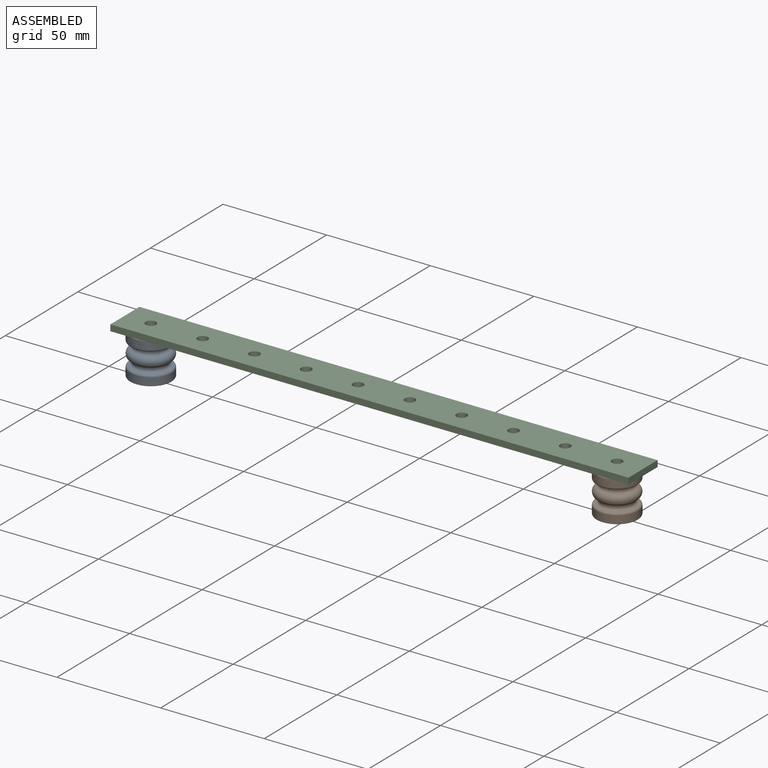
[diagram: assembled view]
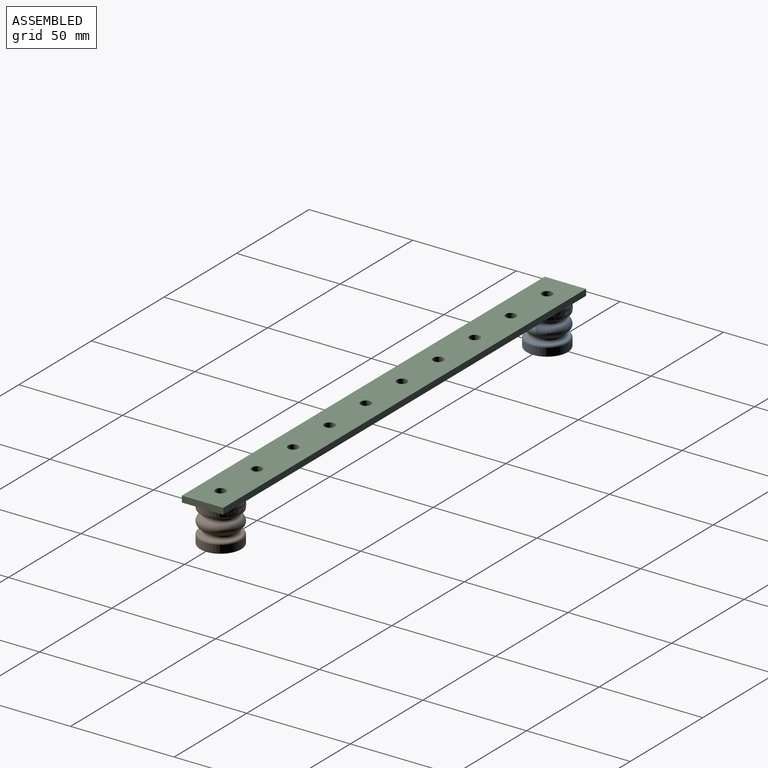
[diagram: assembled view, second angle]
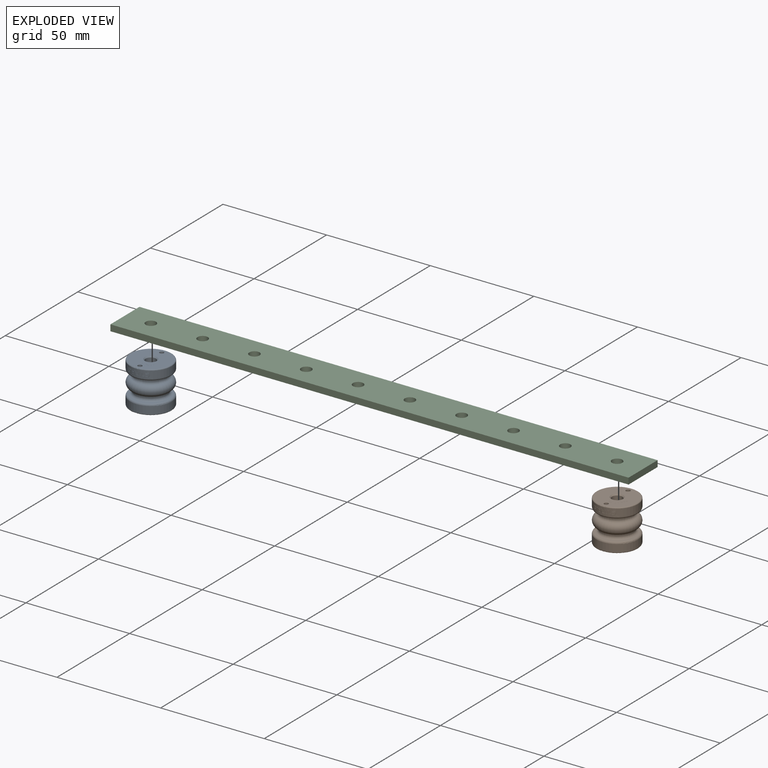
[diagram: exploded view]
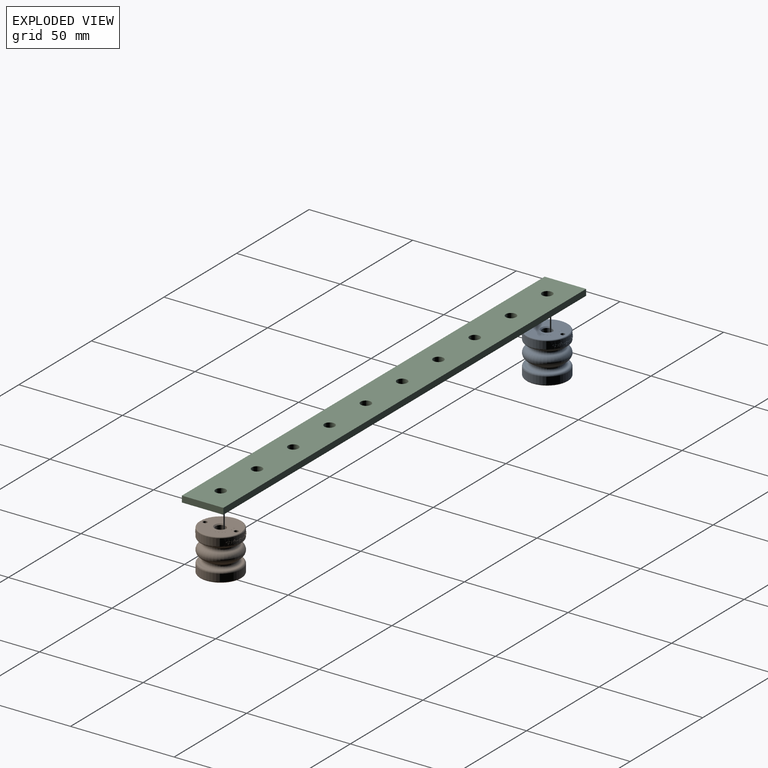
[diagram: exploded view, second angle]
ASSEMBLY  parts=3 mates=2
PART A: 321 faces, bbox 21.7x20x21.7 mm
  f0: cone r=2.5mm half-angle=45deg, axis (0,1,0), area 12.2mm2, adj f4,f313
  f1: cone r=2.5mm half-angle=45deg, axis (0,-1,0), area 12.2mm2, adj f2,f320
  f2: cylinder r=2.5mm len=5mm, axis (0,-1,0), area 78.5mm2, adj f1,f3
  f3: cone r=2.5mm half-angle=59deg, axis (0,-1,0), area 22.9mm2, adj f2
  f4: cylinder r=2.5mm len=5mm, axis (0,1,0), area 78.5mm2, adj f0,f5
  f5: cone r=2.5mm half-angle=59deg, axis (0,1,0), area 22.9mm2, adj f4
  f6: torus R=6.35mm, axis (0,-1,0), area 6.2mm2, adj f25,f30
  f7: torus R=8.75mm, axis (0,1,0), area 75.3mm2, adj f13,f23
  f8: torus R=8.75mm, axis (0,1,0), area 75.3mm2, adj f13,f22
  f9: torus R=8.75mm, axis (0,-1,0), area 98.1mm2, adj f23,f28
  f10: torus R=8.75mm, axis (0,1,0), area 98.1mm2, adj f22,f29
  f11: torus R=9.5mm, axis (0,1,0), area 48.5mm2, adj f24,f27
  f12: torus R=9.5mm, axis (0,-1,0), area 48.5mm2, adj f21,f30
  f13: torus R=7.5mm, axis (0,1,0), area 364.1mm2, adj f7,f8
  f14: torus R=9mm, axis (0,-1,0), area 95.1mm2, adj f24,f28
  f15: torus R=9mm, axis (0,1,0), area 95.1mm2, adj f21,f29
  f16: torus R=1.1mm, axis (0,1,0), area 1mm2, adj f19,f27
  f17: torus R=6.29mm, axis (0,1,0), area 1.8mm2, adj f26,f27
  f18: torus R=1.1mm, axis (0,1,0), area 1mm2, adj f20,f27
  f19: cylinder r=1mm len=2.9mm, axis (0,1,0), area 18.2mm2, adj f16,f306
  f20: cylinder r=1mm len=2.9mm, axis (0,1,0), area 18.2mm2, adj f18,f305
  f21: cylinder r=10mm len=20mm, axis (0,1,0), area 219.9mm2, adj f12,f15
  f22: cylinder r=7.5mm len=15mm, axis (0,1,0), area 10.1mm2, adj f8,f10
  f23: cylinder r=7.5mm len=15mm, axis (0,1,0), area 10.1mm2, adj f7,f9
  f24: cylinder r=10mm len=20mm, axis (0,1,0), area 206.7mm2, adj f11,f14,f31,f32,f33,f34,f35,f36
  f25: plane 12.5x12.5mm, normal (0,-1,0), area 29.2mm2, adj f6,f314,f315,f316,f317,f318,f319
  f26: plane 12.5x12.5mm, normal (0,1,0), area 29.2mm2, adj f17,f307,f308,f309,f310,f311,f312
  f27: plane 19x19mm, normal (0,1,0), area 151.5mm2, adj f11,f16,f17,f18
  f28: plane 18x18mm, normal (0,-1,0), area 13.9mm2, adj f9,f14
  f29: plane 18x18mm, normal (0,1,0), area 13.9mm2, adj f10,f15
  f30: plane 19x19mm, normal (0,-1,0), area 156.9mm2, adj f6,f12
  f31: cylinder r=0.18mm len=0.21mm, axis (0,0,-1), area 0mm2, adj f24,f32,f54,f55
  f32: plane 0.72x0.44mm, normal (0,-1,0), area 0.1mm2, adj f24,f31,f33,f55
  f33: cylinder r=0.18mm len=0.18mm, axis (0,0,-1), area 0mm2, adj f24,f32,f34,f55
  f34: plane 0.66x0.11mm, normal (1,0,0), area 0.1mm2, adj f24,f33,f35,f55
  f35: plane 0.87x0.5mm, normal (0.34,0.94,0), area 0.1mm2, adj f24,f34,f36,f55
  f36: plane 0.36x0.11mm, normal (1,0,0), area 0mm2, adj f24,f35,f37,f55
  f37: plane 0.13x0.03mm, normal (0.71,-0.71,0), area 0mm2, adj f24,f36,f38,f55
  f38: plane 0.58x0.38mm, normal (0,-1,0), area 0.1mm2, adj f24,f37,f39,f55
  f39: plane 0.12x0.04mm, normal (-0.71,-0.71,0), area 0mm2, adj f24,f38,f40,f55
  f40: plane 0.26x0.11mm, normal (-1,0,0), area 0mm2, adj f24,f39,f41,f55
  f41: plane 0.22x0.2mm, normal (-0.34,-0.94,0), area 0mm2, adj f24,f40,f42,f55
  f42: plane 0.44x0.11mm, normal (1,0,0), area 0mm2, adj f24,f41,f43,f55
  f43: cylinder r=0.18mm len=0.18mm, axis (0,0,-1), area 0mm2, adj f24,f42,f44,f55
  f44: plane 0.72x0.44mm, normal (0,1,0), area 0.1mm2, adj f24,f43,f45,f55
  f45: cylinder r=0.18mm len=0.21mm, axis (0,0,-1), area 0mm2, adj f24,f44,f46,f55
  f46: plane 0.66x0.11mm, normal (-1,0,0), area 0.1mm2, adj f24,f45,f47,f55
  f47: plane 0.87x0.53mm, normal (-0.34,-0.94,0), area 0.1mm2, adj f24,f46,f48,f55
  f48: plane 0.36x0.11mm, normal (-1,0,0), area 0mm2, adj f24,f47,f49,f55
  f49: plane 0.12x0.04mm, normal (-0.71,0.71,0), area 0mm2, adj f24,f48,f50,f55
  f50: plane 0.58x0.38mm, normal (0,1,0), area 0.1mm2, adj f24,f49,f51,f55
  f51: plane 0.13x0.03mm, normal (0.71,0.71,0), area 0mm2, adj f24,f50,f52,f55
  f52: plane 0.3x0.11mm, normal (1,0,0), area 0mm2, adj f24,f51,f53,f55
  f53: plane 0.23x0.22mm, normal (0.34,0.94,0), area 0mm2, adj f24,f52,f54,f55
  f54: plane 0.48x0.11mm, normal (-1,0,0), area 0.1mm2, adj f24,f31,f53,f55
  f55: cylinder r=10.1mm len=1.8mm, axis (0,1,0), area 1.2mm2, adj f31,f32,f33,f34,f35,f36,f37,f38
  f56: cylinder r=0.14mm len=0.22mm, axis (0,0,-1), area 0mm2, adj f24,f57,f61,f62
  f57: plane 1.51x0.12mm, normal (-1,0,0), area 0.2mm2, adj f24,f56,f58,f62
  f58: cylinder r=0.14mm len=0.22mm, axis (0,0,-1), area 0mm2, adj f24,f57,f59,f62
  f59: plane 0.4x0.37mm, normal (0,-1,0), area 0mm2, adj f24,f58,f60,f62
  f60: plane 1.8x0.12mm, normal (1,0,0), area 0.2mm2, adj f24,f59,f61,f62
  f61: plane 0.4x0.37mm, normal (0,1,0), area 0mm2, adj f24,f56,f60,f62
  f62: cylinder r=10.1mm len=1.8mm, axis (0,1,0), area 1.1mm2, adj f56,f57,f58,f59,f60,f61
  f63: plane 1.8x0.11mm, normal (-1,0,0), area 0.2mm2, adj f24,f64,f68,f69
  f64: plane 0.4x0.24mm, normal (0,-1,0), area 0mm2, adj f24,f63,f65,f69
  f65: cylinder r=0.14mm len=0.15mm, axis (0,0,-1), area 0mm2, adj f24,f64,f66,f69
  f66: plane 1.51x0.1mm, normal (1,0,0), area 0.2mm2, adj f24,f65,f67,f69
  f67: cylinder r=0.14mm len=0.15mm, axis (0,0,-1), area 0mm2, adj f24,f66,f68,f69
  f68: plane 0.4x0.24mm, normal (0,1,0), area 0mm2, adj f24,f63,f67,f69
  f69: cylinder r=10.1mm len=1.8mm, axis (0,1,0), area 1mm2, adj f63,f64,f65,f66,f67,f68
  f70: plane 0.24x0.1mm, normal (-1,0,0), area 0mm2, adj f24,f71,f73,f74
  f71: plane 0.84x0.24mm, normal (0,-1,0), area 0.1mm2, adj f24,f70,f72,f74
  f72: plane 0.24x0.1mm, normal (1,0,0), area 0mm2, adj f24,f71,f73,f74
  f73: plane 0.84x0.24mm, normal (0,1,0), area 0.1mm2, adj f24,f70,f72,f74
  f74: cylinder r=10.1mm len=0.84mm, axis (0,1,0), area 0.2mm2, adj f70,f71,f72,f73
  f75: plane 0.84x0.24mm, normal (0,-1,0), area 0.1mm2, adj f24,f76,f78,f79
  f76: plane 0.24x0.1mm, normal (1,0,0), area 0mm2, adj f24,f75,f77,f79
  f77: plane 0.84x0.24mm, normal (0,1,0), area 0.1mm2, adj f24,f76,f78,f79
  f78: plane 0.24x0.1mm, normal (-1,0,0), area 0mm2, adj f24,f75,f77,f79
  f79: cylinder r=10.1mm len=0.84mm, axis (0,1,0), area 0.2mm2, adj f75,f76,f77,f78
  f80: plane 0.86x0.25mm, normal (0,-1,0), area 0.1mm2, adj f24,f81,f87,f88
  f81: cylinder r=0.58mm len=0.58mm, axis (0,0,-1), area 0.1mm2, adj f24,f80,f82,f88
  f82: plane 1.1x0.1mm, normal (1,0,0), area 0.1mm2, adj f24,f81,f83,f88
  f83: plane 0.24x0.12mm, normal (0,1,0), area 0mm2, adj f24,f82,f84,f88
  f84: plane 1.1x0.1mm, normal (-1,0,0), area 0.1mm2, adj f24,f83,f85,f88
  f85: cylinder r=0.34mm len=0.34mm, axis (0,0,-1), area 0.1mm2, adj f24,f84,f86,f88
  f86: plane 0.86x0.25mm, normal (0,1,0), area 0.1mm2, adj f24,f85,f87,f88
  f87: plane 0.24x0.1mm, normal (-1,0,0), area 0mm2, adj f24,f80,f86,f88
  f88: cylinder r=10.1mm len=1.68mm, axis (0,1,0), area 0.7mm2, adj f80,f81,f82,f83,f84,f85,f86,f87
  f89: cylinder r=0.34mm len=0.34mm, axis (0,0,-1), area 0.1mm2, adj f24,f90,f96,f97
  f90: plane 0.86x0.12mm, normal (0,1,0), area 0.1mm2, adj f24,f89,f91,f97
  f91: plane 0.24x0.1mm, normal (-1,0,0), area 0mm2, adj f24,f90,f92,f97
  f92: plane 0.86x0.12mm, normal (0,-1,0), area 0.1mm2, adj f24,f91,f93,f97
  f93: cylinder r=0.58mm len=0.58mm, axis (0,0,-1), area 0.1mm2, adj f24,f92,f94,f97
  f94: plane 1.1x0.1mm, normal (1,0,0), area 0.1mm2, adj f24,f93,f95,f97
  f95: plane 0.24x0.13mm, normal (0,1,0), area 0mm2, adj f24,f94,f96,f97
  f96: plane 1.1x0.1mm, normal (-1,0,0), area 0.1mm2, adj f24,f89,f95,f97
  f97: cylinder r=10.1mm len=1.68mm, axis (0,1,0), area 0.7mm2, adj f89,f90,f91,f92,f93,f94,f95,f96
  f98: cylinder r=0.34mm len=0.34mm, axis (0,0,-1), area 0.1mm2, adj f24,f99,f105,f106
  f99: plane 0.14x0.13mm, normal (0,1,0), area 0mm2, adj f24,f98,f100,f106
  f100: plane 0.24x0.1mm, normal (-1,0,0), area 0mm2, adj f24,f99,f101,f106
  f101: plane 0.14x0.13mm, normal (0,-1,0), area 0mm2, adj f24,f100,f102,f106
  f102: cylinder r=0.58mm len=0.58mm, axis (0,0,-1), area 0.1mm2, adj f24,f101,f103,f106
  f103: plane 1.1x0.1mm, normal (1,0,0), area 0.1mm2, adj f24,f102,f104,f106
  f104: plane 0.24x0.16mm, normal (0,1,0), area 0mm2, adj f24,f103,f105,f106
  f105: plane 1.1x0.1mm, normal (-1,0,0), area 0.1mm2, adj f24,f98,f104,f106
  f106: cylinder r=10.1mm len=1.68mm, axis (0,1,0), area 0.5mm2, adj f98,f99,f100,f101,f102,f103,f104,f105
  f107: plane 0.24x0.11mm, normal (-1,0,0), area 0mm2, adj f24,f108,f110,f111
  f108: plane 1.44x0.84mm, normal (0,-1,0), area 0.2mm2, adj f24,f107,f109,f111
  f109: plane 0.24x0.12mm, normal (1,0,0), area 0mm2, adj f24,f108,f110,f111
  f110: plane 1.44x0.84mm, normal (0,1,0), area 0.2mm2, adj f24,f107,f109,f111
  f111: cylinder r=10.1mm len=1.44mm, axis (0,1,0), area 0.4mm2, adj f107,f108,f109,f110
  f112: plane 1.2x0.7mm, normal (0,-1,0), area 0.1mm2, adj f24,f113,f121,f122
  f113: plane 0.29x0.12mm, normal (-1,0,0), area 0mm2, adj f24,f112,f114,f122
  f114: cylinder r=0.43mm len=0.43mm, axis (0,0,-1), area 0.1mm2, adj f24,f113,f115,f122
  f115: plane 0.77x0.46mm, normal (0,1,0), area 0.1mm2, adj f24,f114,f116,f122
  f116: plane 0.24x0.11mm, normal (-1,0,0), area 0mm2, adj f24,f115,f117,f122
  f117: plane 0.77x0.46mm, normal (0,-1,0), area 0.1mm2, adj f24,f116,f118,f122
  f118: cylinder r=0.67mm len=0.67mm, axis (0,0,-1), area 0.1mm2, adj f24,f117,f119,f122
  f119: plane 0.53x0.12mm, normal (1,0,0), area 0.1mm2, adj f24,f118,f120,f122
  f120: plane 1.44x0.84mm, normal (0,1,0), area 0.2mm2, adj f24,f119,f121,f122
  f121: plane 0.24x0.11mm, normal (-1,0,0), area 0mm2, adj f24,f112,f120,f122
  f122: cylinder r=10.1mm len=1.44mm, axis (0,1,0), area 0.9mm2, adj f112,f113,f114,f115,f116,f117,f118,f119
  f123: cylinder r=0.34mm len=0.34mm, axis (0,0,-1), area 0.1mm2, adj f24,f124,f130,f131
  f124: plane 1.1x0.1mm, normal (1,0,0), area 0.1mm2, adj f24,f123,f125,f131
  f125: plane 0.24x0.17mm, normal (0,1,0), area 0mm2, adj f24,f124,f126,f131
  f126: plane 1.1x0.1mm, normal (-1,0,0), area 0.1mm2, adj f24,f125,f127,f131
  f127: cylinder r=0.58mm len=0.58mm, axis (0,0,-1), area 0.1mm2, adj f24,f126,f128,f131
  f128: plane 0.15x0.14mm, normal (0,-1,0), area 0mm2, adj f24,f127,f129,f131
  f129: plane 0.24x0.11mm, normal (1,0,0), area 0mm2, adj f24,f128,f130,f131
  f130: plane 0.15x0.14mm, normal (0,1,0), area 0mm2, adj f24,f123,f129,f131
  f131: cylinder r=10.1mm len=1.68mm, axis (0,1,0), area 0.5mm2, adj f123,f124,f125,f126,f127,f128,f129,f130
  f132: cylinder r=10.1mm len=1.61mm, axis (0,1,0), area 1mm2, adj f133,f134,f135,f136,f137,f138,f139,f140
  f133: extruded ~0.17x0.07mm, area 0mm2, adj f24,f132,f134,f158
  f134: extruded ~0.14x0.04mm, area 0mm2, adj f24,f132,f133,f135
  f135: extruded ~0.35x0.13mm, area 0mm2, adj f24,f132,f134,f136
  f136: plane 0.41x0.38mm, normal (0,1,0), area 0mm2, adj f24,f132,f135,f137
  f137: plane 0.19x0.12mm, normal (-1,0,0), area 0mm2, adj f24,f132,f136,f138
  f138: plane 0.4x0.38mm, normal (0,-1,0), area 0mm2, adj f24,f132,f137,f139
  f139: extruded ~0.54x0.2mm, area 0.1mm2, adj f24,f132,f138,f140
  f140: extruded ~0.48x0.47mm, area 0.1mm2, adj f24,f132,f139,f141
  f141: plane 0.24x0.18mm, normal (0.81,-0.59,0), area 0mm2, adj f24,f132,f140,f142
  f142: extruded ~0.45x0.42mm, area 0.1mm2, adj f24,f132,f141,f143
  f143: extruded ~0.44x0.19mm, area 0.1mm2, adj f24,f132,f142,f144
  f144: plane 0.44x0.41mm, normal (0,-1,0), area 0.1mm2, adj f24,f132,f143,f145
  f145: plane 0.37x0.13mm, normal (-1,0.02,0), area 0mm2, adj f24,f132,f144,f146
  f146: plane 0.3x0.21mm, normal (0,-1,0), area 0mm2, adj f24,f132,f145,f147
  f147: plane 0.37x0.14mm, normal (1,-0.02,0), area 0mm2, adj f24,f132,f146,f148
  f148: plane 0.48x0.39mm, normal (0,-1,0), area 0.1mm2, adj f24,f132,f147,f149
  f149: plane 0.19x0.14mm, normal (1,0,0), area 0mm2, adj f24,f132,f148,f150
  f150: plane 0.48x0.39mm, normal (0,1,0), area 0.1mm2, adj f24,f132,f149,f151
  f151: plane 0.37x0.14mm, normal (1,-0.02,0), area 0mm2, adj f24,f132,f150,f152
  f152: plane 0.27x0.17mm, normal (0,1,0), area 0mm2, adj f24,f132,f151,f153
  f153: extruded ~0.18x0.07mm, area 0mm2, adj f24,f132,f152,f154
  f154: extruded ~0.16x0.04mm, area 0mm2, adj f24,f132,f153,f155
  f155: plane 0.3x0.13mm, normal (-1,0.02,0), area 0mm2, adj f24,f132,f154,f156
  f156: plane 0.43x0.4mm, normal (0,1,0), area 0.1mm2, adj f24,f132,f155,f157
  f157: extruded ~0.42x0.13mm, area 0.1mm2, adj f24,f132,f156,f158
  f158: plane 0.24x0.17mm, normal (0,1,0), area 0mm2, adj f24,f132,f133,f157
  f159: cylinder r=10.1mm len=0.67mm, axis (0,1,0), area 0.2mm2, adj f160,f161,f162,f163,f164,f165,f166,f167
  f160: extruded ~0.28x0.19mm, area 0mm2, adj f24,f159,f161,f167
  f161: cylinder r=1.59mm len=0.24mm, axis (0,0,1), area 0mm2, adj f24,f159,f160,f162
  f162: plane 0.22x0.18mm, normal (0.52,-0.85,0), area 0mm2, adj f24,f159,f161,f163
  f163: extruded ~0.24x0.21mm, area 0mm2, adj f24,f159,f162,f164
  f164: extruded ~0.32x0.2mm, area 0mm2, adj f24,f159,f163,f165
  f165: plane 0.2x0.16mm, normal (-0.43,0.9,0), area 0mm2, adj f24,f159,f164,f166
  f166: extruded ~0.13x0.05mm, area 0mm2, adj f24,f159,f165,f167
  f167: extruded ~0.13x0.04mm, area 0mm2, adj f24,f159,f160,f166
  f168: cylinder r=10.1mm len=0.64mm, axis (0,1,0), area 0.1mm2, adj f169,f170,f171,f172,f173
  f169: cylinder r=2.99mm len=0.51mm, axis (0,0,1), area 0.1mm2, adj f24,f168,f170,f173
  f170: plane 0.17x0.17mm, normal (-0.6,-0.8,0), area 0mm2, adj f24,f168,f169,f171
  f171: extruded ~0.27x0.19mm, area 0mm2, adj f24,f168,f170,f172
  f172: extruded ~0.25x0.21mm, area 0mm2, adj f24,f168,f171,f173
  f173: plane 0.18x0.16mm, normal (0.59,0.8,0), area 0mm2, adj f24,f168,f169,f172
  f174: cylinder r=0.2mm len=0.17mm, axis (0,0,1), area 0mm2, adj f24,f175,f181,f190
  f175: cylinder r=0.21mm len=0.15mm, axis (0,0,1), area 0mm2, adj f24,f174,f176,f190
  f176: cylinder r=0.2mm len=0.15mm, axis (0,0,1), area 0mm2, adj f24,f175,f177,f190
  f177: cylinder r=0.21mm len=0.17mm, axis (0,0,1), area 0mm2, adj f24,f176,f178,f190
  f178: cylinder r=0.2mm len=0.17mm, axis (0,0,1), area 0mm2, adj f24,f177,f179,f190
  f179: cylinder r=0.21mm len=0.15mm, axis (0,0,1), area 0mm2, adj f24,f178,f180,f190
  f180: cylinder r=0.2mm len=0.15mm, axis (0,0,1), area 0mm2, adj f24,f179,f181,f190
  f181: cylinder r=0.21mm len=0.17mm, axis (0,0,1), area 0mm2, adj f24,f174,f180,f190
  f182: extruded ~0.12x0.08mm, area 0mm2, adj f183,f189,f190,f191
  f183: cylinder r=0.11mm len=0.12mm, axis (0,0,-1), area 0mm2, adj f182,f184,f190,f191
  f184: cylinder r=0.09mm len=0.13mm, axis (0,0,-1), area 0mm2, adj f183,f185,f190,f191
  f185: cylinder r=0.11mm len=0.14mm, axis (0,0,-1), area 0mm2, adj f184,f186,f190,f191
  f186: cylinder r=0.09mm len=0.12mm, axis (0,0,-1), area 0mm2, adj f185,f187,f190,f191
  f187: extruded ~0.12x0.08mm, area 0mm2, adj f186,f188,f190,f191
  f188: extruded ~0.14x0.08mm, area 0mm2, adj f187,f189,f190,f191
  f189: extruded ~0.13x0.07mm, area 0mm2, adj f182,f188,f190,f191
  f190: cylinder r=10.1mm len=0.43mm, axis (0,1,0), area 0.1mm2, adj f174,f175,f176,f177,f178,f179,f180,f181
  f191: cylinder r=10mm len=0.21mm, axis (0,1,0), area 0mm2, adj f182,f183,f184,f185,f186,f187,f188,f189
  f192: cylinder r=10.1mm len=1.56mm, axis (0,1,0), area 0.6mm2, adj f193,f194,f195,f196,f197,f198,f199,f200
  f193: extruded ~0.14x0.06mm, area 0mm2, adj f24,f192,f194,f206
  f194: extruded ~0.12x0.04mm, area 0mm2, adj f24,f192,f193,f195
  f195: plane 0.33x0.11mm, normal (-1,0,0), area 0mm2, adj f24,f192,f194,f196
  f196: plane 0.64x0.38mm, normal (0,1,0), area 0.1mm2, adj f24,f192,f195,f197
  f197: plane 0.19x0.11mm, normal (-1,0,0), area 0mm2, adj f24,f192,f196,f198
  f198: plane 0.64x0.38mm, normal (0,-1,0), area 0.1mm2, adj f24,f192,f197,f199
  f199: plane 0.98x0.11mm, normal (-1,0,0), area 0.1mm2, adj f24,f192,f198,f200
  f200: plane 0.21x0.21mm, normal (0,-1,0), area 0mm2, adj f24,f192,f199,f201
  f201: plane 0.98x0.11mm, normal (1,0,0), area 0.1mm2, adj f24,f192,f200,f202
  f202: plane 0.63x0.45mm, normal (0,-1,0), area 0.1mm2, adj f24,f192,f201,f203
  f203: plane 0.19x0.12mm, normal (1,0,0), area 0mm2, adj f24,f192,f202,f204
  f204: plane 0.63x0.45mm, normal (0,1,0), area 0.1mm2, adj f24,f192,f203,f205
  f205: plane 0.39x0.11mm, normal (1,0,0), area 0mm2, adj f24,f192,f204,f206
  f206: plane 0.2x0.18mm, normal (0,1,0), area 0mm2, adj f24,f192,f193,f205
  f207: cylinder r=10.1mm len=1.6mm, axis (0,1,0), area 0.3mm2, adj f208,f209,f210,f211
  f208: plane 0.21x0.11mm, normal (1,0,0), area 0mm2, adj f24,f207,f209,f211
  f209: plane 1.6x0.52mm, normal (0,1,0), area 0.2mm2, adj f24,f207,f208,f210
  f210: plane 0.21x0.1mm, normal (-1,0,0), area 0mm2, adj f24,f207,f209,f211
  f211: plane 1.6x0.52mm, normal (0,-1,0), area 0.2mm2, adj f24,f207,f208,f210
  f212: cylinder r=10.1mm len=1.6mm, axis (0,1,0), area 0.7mm2, adj f213,f214,f215,f216,f217,f218,f219,f220
  f213: extruded ~0.1x0.08mm, area 0mm2, adj f24,f212,f214,f237
  f214: extruded ~0.14x0.11mm, area 0mm2, adj f24,f212,f213,f215
  f215: plane 0.43x0.13mm, normal (0,1,0), area 0mm2, adj f24,f212,f214,f216
  f216: plane 0.1x0.06mm, normal (0.41,0.91,0), area 0mm2, adj f24,f212,f215,f217
  f217: plane 0.12x0.1mm, normal (-0.64,0.77,0), area 0mm2, adj f24,f212,f216,f218
  f218: extruded ~0.1x0.06mm, area 0mm2, adj f24,f212,f217,f219
  f219: extruded ~0.28x0.1mm, area 0mm2, adj f24,f212,f218,f220
  f220: extruded ~0.21x0.1mm, area 0mm2, adj f24,f212,f219,f221
  f221: cylinder r=1.12mm len=0.17mm, axis (0,0,1), area 0mm2, adj f24,f212,f220,f222
  f222: plane 0.17x0.12mm, normal (-0.82,-0.58,0), area 0mm2, adj f24,f212,f221,f223
  f223: extruded ~0.15x0.12mm, area 0mm2, adj f24,f212,f222,f224
  f224: extruded ~0.27x0.26mm, area 0mm2, adj f24,f212,f223,f225
  f225: extruded ~0.35x0.22mm, area 0mm2, adj f24,f212,f224,f226
  f226: plane 0.17x0.15mm, normal (0.66,-0.75,0), area 0mm2, adj f24,f212,f225,f227
  f227: extruded ~0.6x0.45mm, area 0.1mm2, adj f24,f212,f226,f228
  f228: extruded ~0.35x0.2mm, area 0mm2, adj f24,f212,f227,f229
  f229: plane 0.15x0.11mm, normal (0.81,0.59,0), area 0mm2, adj f24,f212,f228,f230
  f230: extruded ~0.34x0.18mm, area 0mm2, adj f24,f212,f229,f231
  f231: extruded ~0.35x0.11mm, area 0mm2, adj f24,f212,f230,f232
  f232: plane 0.46x0.13mm, normal (0,-1,0), area 0mm2, adj f24,f212,f231,f233
  f233: extruded ~0.21x0.15mm, area 0mm2, adj f24,f212,f232,f234
  f234: extruded ~0.21x0.18mm, area 0mm2, adj f24,f212,f233,f235
  f235: plane 0.17x0.12mm, normal (0.6,-0.8,0), area 0mm2, adj f24,f212,f234,f236
  f236: extruded ~0.79x0.49mm, area 0.1mm2, adj f24,f212,f235,f237
  f237: plane 0.13x0.11mm, normal (-0.47,0.88,0), area 0mm2, adj f24,f212,f213,f236
  f238: cylinder r=10.1mm len=1.6mm, axis (0,1,0), area 0.3mm2, adj f239,f240,f241,f242
  f239: plane 0.21x0.1mm, normal (1,0,0), area 0mm2, adj f24,f238,f240,f242
  f240: plane 1.6x0.26mm, normal (0,1,0), area 0.2mm2, adj f24,f238,f239,f241
  f241: plane 0.21x0.1mm, normal (-1,0,0), area 0mm2, adj f24,f238,f240,f242
  f242: plane 1.6x0.26mm, normal (0,-1,0), area 0.2mm2, adj f24,f238,f239,f241
  f243: cylinder r=10.1mm len=1.43mm, axis (0,1,0), area 0.6mm2, adj f244,f245,f246,f247,f248,f249,f250,f251
  f244: extruded ~0.24x0.13mm, area 0mm2, adj f24,f243,f245,f264
  f245: extruded ~0.15x0.14mm, area 0mm2, adj f24,f243,f244,f246
  f246: extruded ~0.15x0.14mm, area 0mm2, adj f24,f243,f245,f247
  f247: extruded ~0.12x0.11mm, area 0mm2, adj f24,f243,f246,f248
  f248: extruded ~0.26x0.26mm, area 0mm2, adj f24,f243,f247,f249
  f249: extruded ~0.45x0.35mm, area 0.1mm2, adj f24,f243,f248,f250
  f250: extruded ~0.26x0.14mm, area 0mm2, adj f24,f243,f249,f251
  f251: extruded ~0.3x0.21mm, area 0mm2, adj f24,f243,f250,f252
  f252: extruded ~0.32x0.2mm, area 0mm2, adj f24,f243,f251,f253
  f253: extruded ~0.39x0.13mm, area 0mm2, adj f24,f243,f252,f254
  f254: plane 0.19x0.16mm, normal (0,1,0), area 0mm2, adj f24,f243,f253,f255
  f255: extruded ~0.35x0.24mm, area 0mm2, adj f24,f243,f254,f256
  f256: extruded ~0.21x0.21mm, area 0mm2, adj f24,f243,f255,f257
  f257: extruded ~0.29x0.28mm, area 0mm2, adj f24,f243,f256,f258
  f258: extruded ~0.25x0.18mm, area 0mm2, adj f24,f243,f257,f259
  f259: extruded ~0.23x0.13mm, area 0mm2, adj f24,f243,f258,f260
  f260: extruded ~0.24x0.13mm, area 0mm2, adj f24,f243,f259,f261
  f261: extruded ~0.28x0.19mm, area 0mm2, adj f24,f243,f260,f262
  f262: extruded ~0.27x0.19mm, area 0mm2, adj f24,f243,f261,f263
  f263: extruded ~0.38x0.15mm, area 0mm2, adj f24,f243,f262,f264
  f264: plane 0.18x0.17mm, normal (0,-1,0), area 0mm2, adj f24,f243,f244,f263
  f265: cylinder r=10.1mm len=0.54mm, axis (0,1,0), area 0.1mm2, adj f266,f267,f268,f269
  f266: plane 0.54x0.33mm, normal (0,-1,0), area 0.1mm2, adj f24,f265,f267,f269
  f267: plane 0.18x0.11mm, normal (1,0,0), area 0mm2, adj f24,f265,f266,f268
  f268: plane 0.54x0.33mm, normal (0,1,0), area 0.1mm2, adj f24,f265,f267,f269
  f269: plane 0.18x0.11mm, normal (-1,0,0), area 0mm2, adj f24,f265,f266,f268
  f270: cylinder r=10.1mm len=1.43mm, axis (0,1,0), area 0.5mm2, adj f271,f272,f273,f274,f275,f276,f277,f278
  f271: extruded ~0.25x0.24mm, area 0mm2, adj f24,f270,f272,f286
  f272: extruded ~0.28x0.18mm, area 0mm2, adj f24,f270,f271,f273
  f273: extruded ~0.53x0.25mm, area 0.1mm2, adj f24,f270,f272,f274
  f274: extruded ~0.37x0.27mm, area 0.1mm2, adj f24,f270,f273,f275
  f275: plane 0.51x0.38mm, normal (0,1,0), area 0.1mm2, adj f24,f270,f274,f276
  f276: plane 0.17x0.11mm, normal (-1,0,0), area 0mm2, adj f24,f270,f275,f277
  f277: plane 0.73x0.48mm, normal (0,-1,0), area 0.1mm2, adj f24,f270,f276,f278
  f278: plane 0.15x0.11mm, normal (1,0,0), area 0mm2, adj f24,f270,f277,f279
  f279: extruded ~0.48x0.34mm, area 0.1mm2, adj f24,f270,f278,f280
  f280: extruded ~0.42x0.23mm, area 0.1mm2, adj f24,f270,f279,f281
  f281: extruded ~0.17x0.14mm, area 0mm2, adj f24,f270,f280,f282
  f282: extruded ~0.18x0.12mm, area 0mm2, adj f24,f270,f281,f283
  f283: extruded ~0.34x0.2mm, area 0mm2, adj f24,f270,f282,f284
  f284: plane 0.2x0.18mm, normal (0,-1,0), area 0mm2, adj f24,f270,f283,f285
  f285: extruded ~0.42x0.18mm, area 0mm2, adj f24,f270,f284,f286
  f286: extruded ~0.22x0.22mm, area 0mm2, adj f24,f270,f271,f285
  f287: extruded ~0.28x0.24mm, area 0mm2, adj f24,f288,f294,f303
  f288: extruded ~0.63x0.25mm, area 0.1mm2, adj f24,f287,f289,f303
  f289: extruded ~0.63x0.25mm, area 0.1mm2, adj f24,f288,f290,f303
  f290: extruded ~0.28x0.24mm, area 0mm2, adj f24,f289,f291,f303
  f291: extruded ~0.27x0.24mm, area 0mm2, adj f24,f290,f292,f303
  f292: extruded ~0.63x0.22mm, area 0.1mm2, adj f24,f291,f293,f303
  f293: extruded ~0.63x0.22mm, area 0.1mm2, adj f24,f292,f294,f303
  f294: extruded ~0.27x0.24mm, area 0mm2, adj f24,f287,f293,f303
  f295: extruded ~0.5x0.2mm, area 0.1mm2, adj f296,f302,f303,f304
  f296: extruded ~0.5x0.2mm, area 0.1mm2, adj f295,f297,f303,f304
  f297: extruded ~0.2x0.12mm, area 0mm2, adj f296,f298,f303,f304
  f298: extruded ~0.2x0.12mm, area 0mm2, adj f297,f299,f303,f304
  f299: extruded ~0.5x0.19mm, area 0.1mm2, adj f298,f300,f303,f304
  f300: extruded ~0.5x0.19mm, area 0.1mm2, adj f299,f301,f303,f304
  f301: extruded ~0.2x0.12mm, area 0mm2, adj f300,f302,f303,f304
  f302: extruded ~0.2x0.12mm, area 0mm2, adj f295,f301,f303,f304
  f303: cylinder r=10.1mm len=1.44mm, axis (0,1,0), area 0.6mm2, adj f287,f288,f289,f290,f291,f292,f293,f294
  f304: cylinder r=10mm len=1.11mm, axis (0,1,0), area 0.4mm2, adj f295,f296,f297,f298,f299,f300,f301,f302
  f305: plane 2x2mm, normal (0,1,0), area 3.1mm2, adj f20
  f306: plane 2x2mm, normal (0,1,0), area 3.1mm2, adj f19
  f307: plane 5.2x3mm, normal (0.87,0,0.5), area 0.1mm2, adj f26,f308,f312,f313
  f308: plane 5.2x3mm, normal (0.87,0,-0.5), area 0.1mm2, adj f26,f307,f309,f313
  f309: plane 6x0.01mm, normal (0,0,-1), area 0.1mm2, adj f26,f308,f310,f313
  f310: plane 5.2x3mm, normal (-0.87,0,-0.5), area 0.1mm2, adj f26,f309,f311,f313
  f311: plane 5.2x3mm, normal (-0.87,0,0.5), area 0.1mm2, adj f26,f310,f312,f313
  f312: plane 6x0.01mm, normal (0,0,1), area 0.1mm2, adj f26,f307,f311,f313
  f313: plane 12x10.39mm, normal (0,1,0), area 65.3mm2, adj f0,f307,f308,f309,f310,f311,f312
  f314: plane 5.2x3mm, normal (0.87,0,-0.5), area 0.6mm2, adj f25,f315,f319,f320
  f315: plane 5.2x3mm, normal (0.87,0,0.5), area 0.6mm2, adj f25,f314,f316,f320
  f316: plane 6x0.1mm, normal (0,0,1), area 0.6mm2, adj f25,f315,f317,f320
  f317: plane 5.2x3mm, normal (-0.87,0,0.5), area 0.6mm2, adj f25,f316,f318,f320
  f318: plane 5.2x3mm, normal (-0.87,0,-0.5), area 0.6mm2, adj f25,f317,f319,f320
  f319: plane 6x0.1mm, normal (0,0,-1), area 0.6mm2, adj f25,f314,f318,f320
  f320: plane 12x10.39mm, normal (0,-1,0), area 65.3mm2, adj f1,f314,f315,f316,f317,f318,f319
PART B: same geometry as A
PART C: 16 faces, bbox 250x20x3 mm
  f0: plane 250x3mm, normal (0,1,0), area 750mm2, adj f1,f3,f4,f5
  f1: plane 20x3mm, normal (-1,0,0), area 60mm2, adj f0,f2,f4,f5
  f2: plane 250x3mm, normal (0,-1,0), area 750mm2, adj f1,f3,f4,f5
  f3: plane 20x3mm, normal (1,0,0), area 60mm2, adj f0,f2,f4,f5
  f4: plane 250x20mm, normal (0,0,1), area 4803.7mm2, adj f0,f1,f2,f3,f6,f7,f8,f9
  f5: plane 250x20mm, normal (0,0,-1), area 4803.7mm2, adj f0,f1,f2,f3,f6,f7,f8,f9
  f6: cylinder r=2.5mm len=5mm, axis (0,0,-1), area 47.1mm2, adj f4,f5
  f7: cylinder r=2.5mm len=5mm, axis (0,0,-1), area 47.1mm2, adj f4,f5
  f8: cylinder r=2.5mm len=5mm, axis (0,0,-1), area 47.1mm2, adj f4,f5
  f9: cylinder r=2.5mm len=5mm, axis (0,0,-1), area 47.1mm2, adj f4,f5
  f10: cylinder r=2.5mm len=5mm, axis (0,0,-1), area 47.1mm2, adj f4,f5
  f11: cylinder r=2.5mm len=5mm, axis (0,0,-1), area 47.1mm2, adj f4,f5
  f12: cylinder r=2.5mm len=5mm, axis (0,0,-1), area 47.1mm2, adj f4,f5
  f13: cylinder r=2.5mm len=5mm, axis (0,0,-1), area 47.1mm2, adj f4,f5
  f14: cylinder r=2.5mm len=5mm, axis (0,0,-1), area 47.1mm2, adj f4,f5
  f15: cylinder r=2.5mm len=5mm, axis (0,0,-1), area 47.1mm2, adj f4,f5
PLACE A rot(axis=(1,0,0),90deg) t=(10.59,42.39,-57.02)mm
PLACE B rot(axis=(1,0,0),90deg) t=(235.59,42.39,-57.02)mm
PLACE C rot(axis=(-1,0,0),0deg) t=(-1.91,42.39,-47.02)mm
MATE slider B.f8 <-> C.f6  axis (0,0,1) through (235.59,42.39,-47.02)mm
MATE slider C.f15 <-> A.f8  axis (0,0,-1) through (10.59,42.39,-47.02)mm
